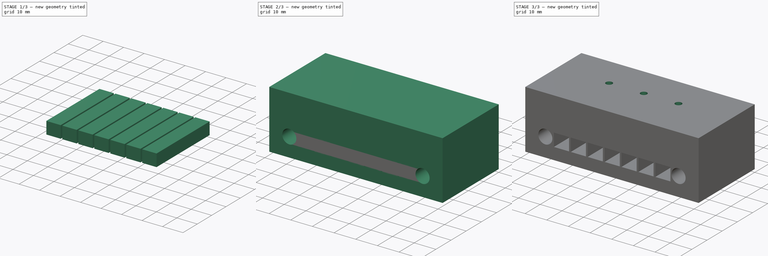
[diagram: build sequence overview — one tinted view per stage of 3, left to right]
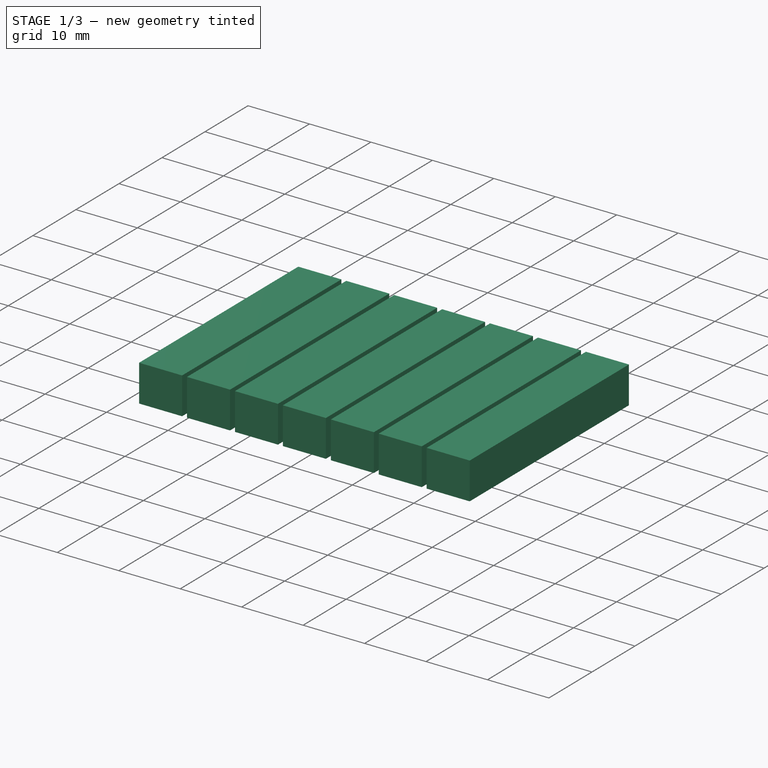
[diagram: stage 1 of 3 — iso view after this stage's code; geometry added in this stage tinted green]
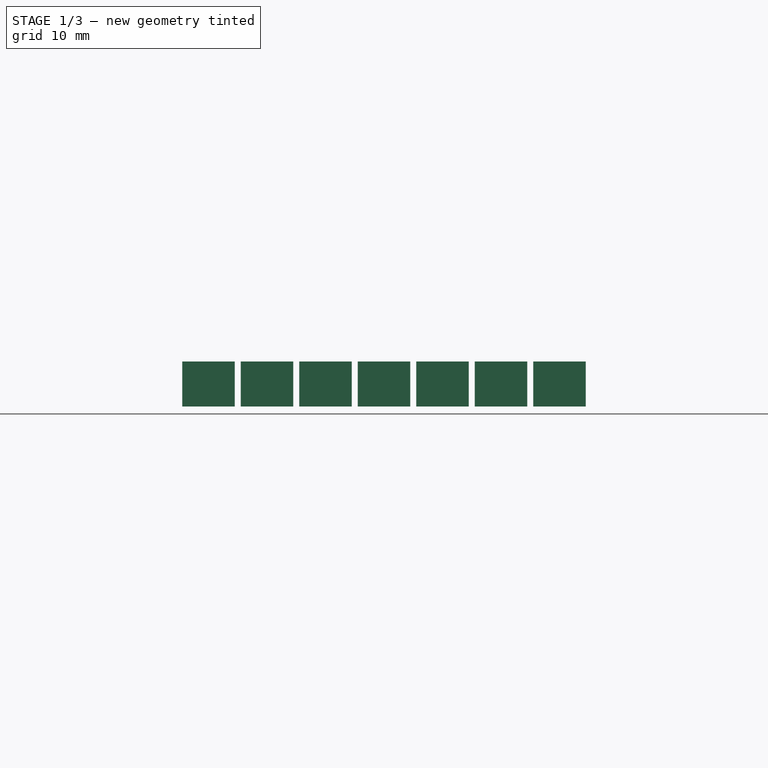
[diagram: stage 1 of 3 — front view after this stage's code; geometry added in this stage tinted green]
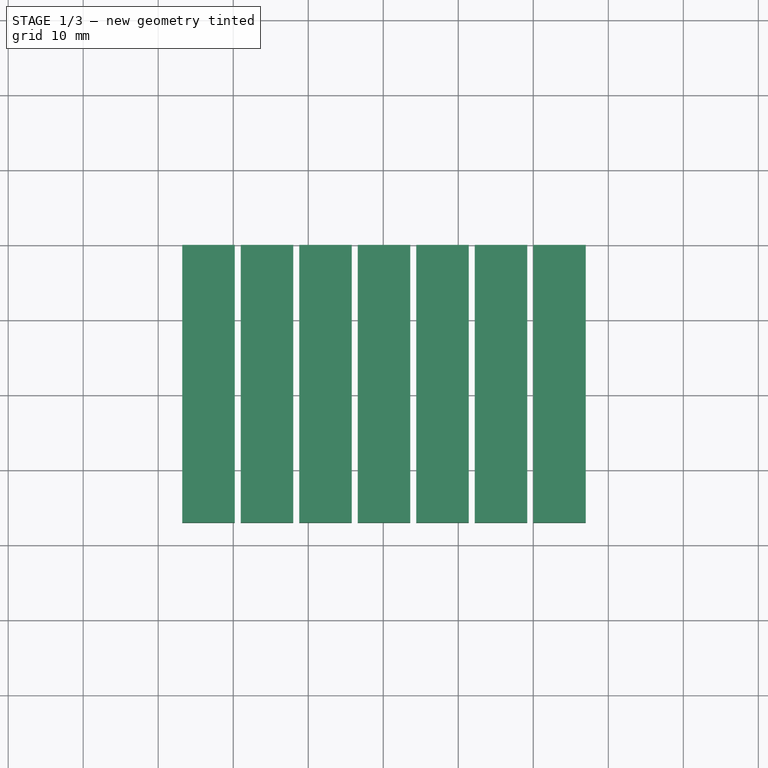
[diagram: stage 1 of 3 — top view after this stage's code; geometry added in this stage tinted green]
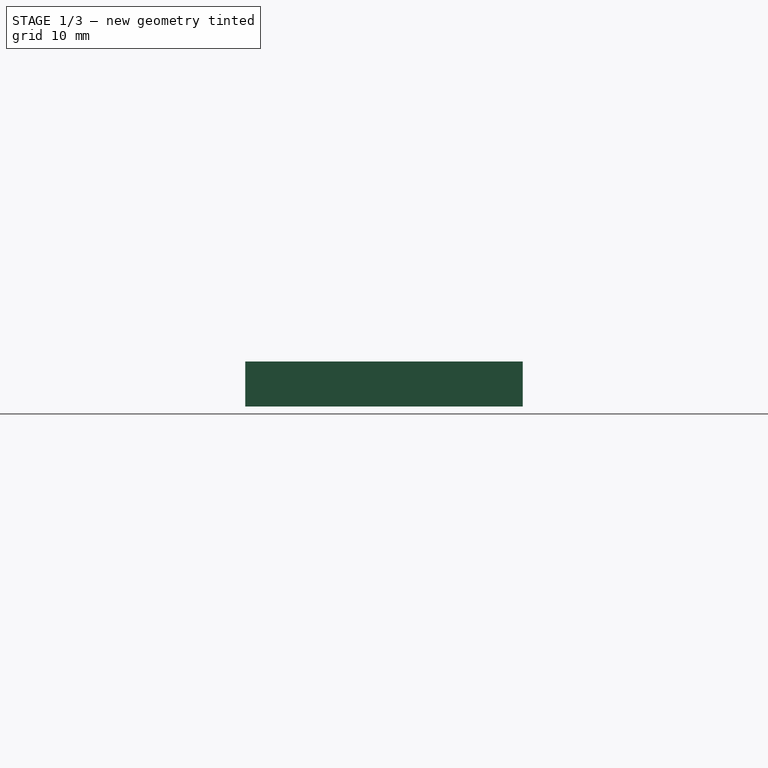
[diagram: stage 1 of 3 — right view after this stage's code; geometry added in this stage tinted green]
FCSTD DOCUMENT  (FreeCAD 0.18R16110 (Git))
Label: UPS_radiator
License: All rights reserved
LicenseURL: http://en.wikipedia.org/wiki/All_rights_reserved
objects: Sketcher::SketchObject×3, PartDesign::Pocket×2, PartDesign::Pad×1, PartDesign::Body×1, Part::Box×1, Part::FeaturePython×1, Part::Cut×1
note: 13 computed .brp shape members not serialized (recipe doc carries the construction recipe); baked Part::Feature solids carry a one-line shape summary decoded from their .brp

FEATURE [PartDesign::Body] Body
  Group = -> [Sketch001,Sketch002,Sketch,Pad,Pocket,Pocket001]
  Origin = -> Origin
  Tip = -> Pocket001
FEATURE [Part::Box] Box  label="Cube"
  AttacherType = Attacher::AttachEngine3D
  Height = 6
  Length = 7
  Placement = pos=(20,-37,5.5) rot=(0,0,1;0rad)
  Width = 37
FEATURE [Part::FeaturePython] Array  # Draft array (typed FeaturePython)
  Angle = 360
  ArrayType = 0
  Axis = (0,0,1)
  Base = -> Box
  Center = (0,0,0)
  Fuse = false
  IntervalAxis = (0,0,0)
  IntervalX = (-7.8,0,0)
  IntervalY = (0,1,0)
  IntervalZ = (0,0,1)
  NumberPolar = 1
  NumberX = 7
  NumberY = 1
  NumberZ = 1
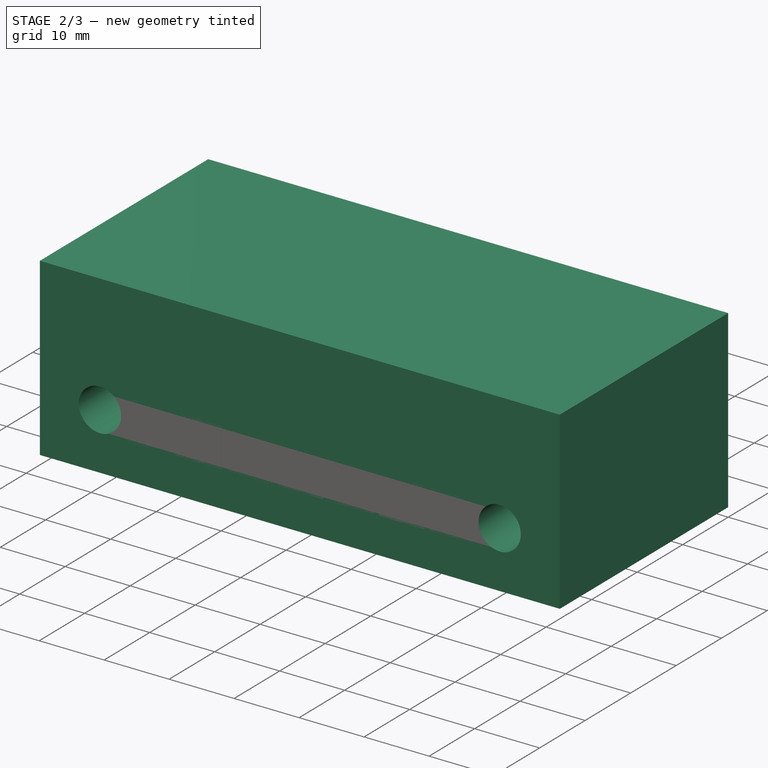
[diagram: stage 2 of 3 — iso view after this stage's code; geometry added in this stage tinted green]
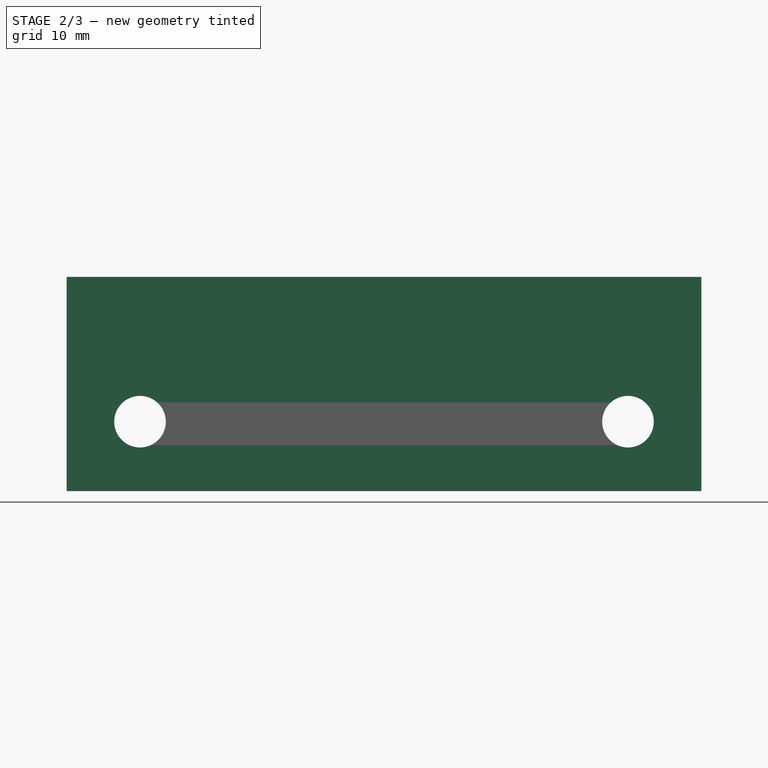
[diagram: stage 2 of 3 — front view after this stage's code; geometry added in this stage tinted green]
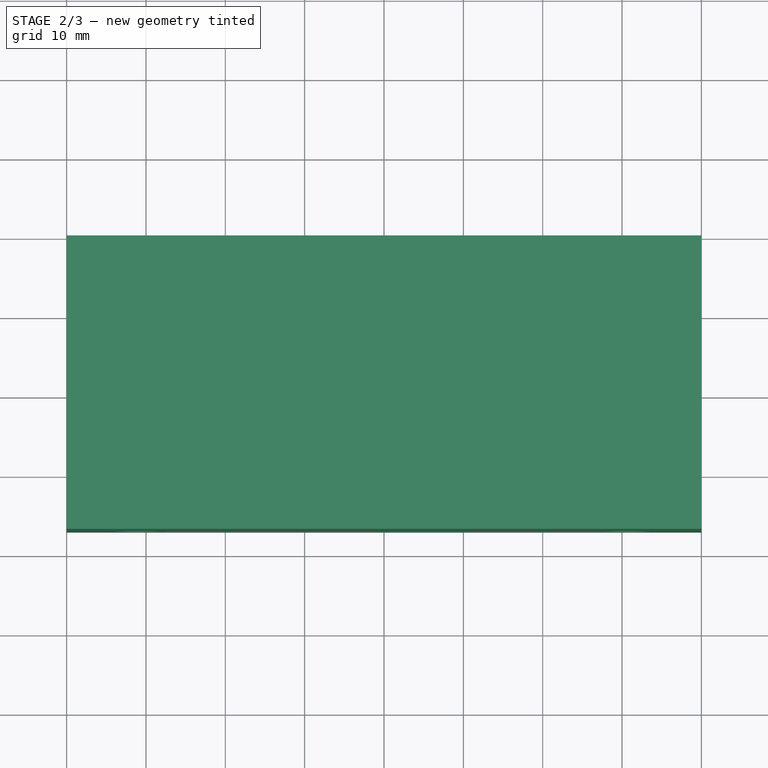
[diagram: stage 2 of 3 — top view after this stage's code; geometry added in this stage tinted green]
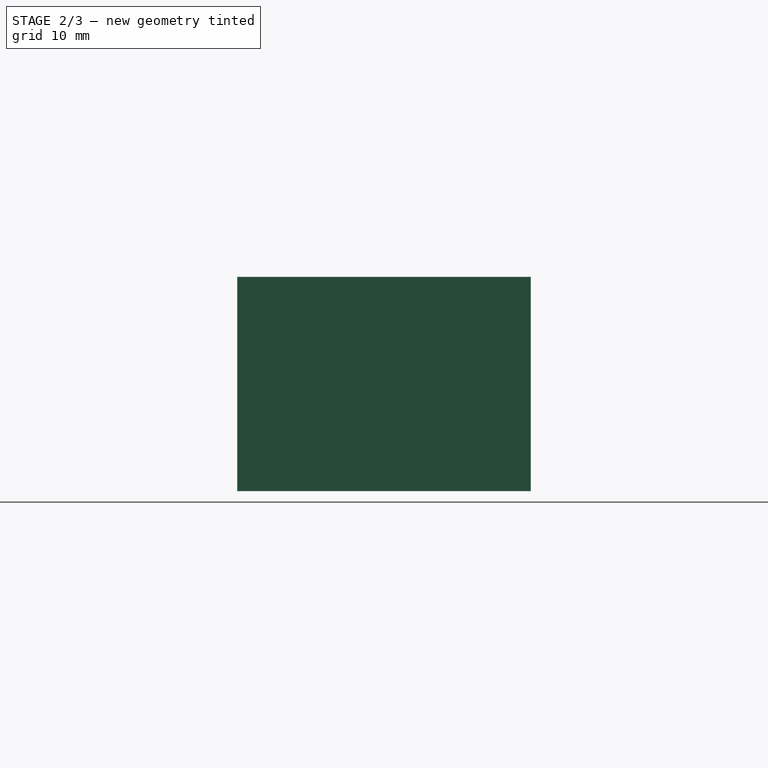
[diagram: stage 2 of 3 — right view after this stage's code; geometry added in this stage tinted green]
FEATURE [Sketcher::SketchObject] Sketch001
  MapMode = 5
  Placement = pos=(0,-37.5,1e-16) rot=(1,0,0;1.5708rad)
  sketch-geometry (5):
    g0: LineSegment [constr] StartX=-40 StartY=5.5 StartZ=0 EndX=40 EndY=5.5 EndZ=0
    g1: LineSegment [constr] StartX=34 StartY=15 StartZ=0 EndX=34 EndY=0 EndZ=0
    g2: LineSegment [constr] StartX=-34 StartY=15 StartZ=0 EndX=-34 EndY=0 EndZ=0
    g3: Circle CenterX=-30.75 CenterY=8.75 CenterZ=0 NormalX=0 NormalY=0 NormalZ=1 AngleXU=0 Radius=3.25
    g4: Circle CenterX=30.75 CenterY=8.75 CenterZ=0 NormalX=0 NormalY=0 NormalZ=1 AngleXU=0 Radius=3.25
  constraints (14):
    c: DistanceY(g-1,g0) = 5.5
    c: Vertical(g1)
    c: Vertical(g2)
    c: PointOnObject(g2,g-1)
    c: Symmetric(g2,g1,g-2)
    c: DistanceX(g2,g1) = 68
    c: Symmetric(g0,g0,g-2)
    c: DistanceX(g0,g0) = 80
    c: Diameter(g3) = 6.5
    c: Diameter(g4) = 6.5
    c: Tangent(g3,g0)
    c: Tangent(g3,g2)
    c: Tangent(g4,g0)
    c: Tangent(g4,g1)
FEATURE [Sketcher::SketchObject] Sketch
  MapMode = 2
  Placement = pos=(0,0,0) rot=(1,0,0;1.5708rad)
  sketch-geometry (4):
    g0: LineSegment StartX=-40 StartY=0 StartZ=0 EndX=40 EndY=0 EndZ=0
    g1: LineSegment StartX=40 StartY=0 StartZ=0 EndX=40 EndY=27 EndZ=0
    g2: LineSegment StartX=40 StartY=27 StartZ=0 EndX=-40 EndY=27 EndZ=0
    g3: LineSegment StartX=-40 StartY=27 StartZ=0 EndX=-40 EndY=0 EndZ=0
  constraints (12):
    c: Coincident(g0,g1)
    c: Coincident(g1,g2)
    c: Coincident(g2,g3)
    c: Coincident(g3,g0)
    c: Horizontal(g0)
    c: Horizontal(g2)
    c: Vertical(g1)
    c: Vertical(g3)
    c: PointOnObject(g0,g-1)
    c: DistanceX(g0,g0) = 80
    c: DistanceY(g1,g1) = 27
    c: DistanceX(g-2,g0) = -40
FEATURE [PartDesign::Pad] Pad
  Length = 37
  Length2 = 100
  Placement = pos=(0,0,0) rot=(1,0,0;1.5708rad)
  Profile = -> Sketch
  Type = 0
FEATURE [PartDesign::Pocket] Pocket
  BaseFeature = -> Pad
  Length = 5
  Length2 = 100
  Placement = pos=(0,0,0) rot=(1,0,0;1.5708rad)
  Profile = -> Sketch001
  Type = 1
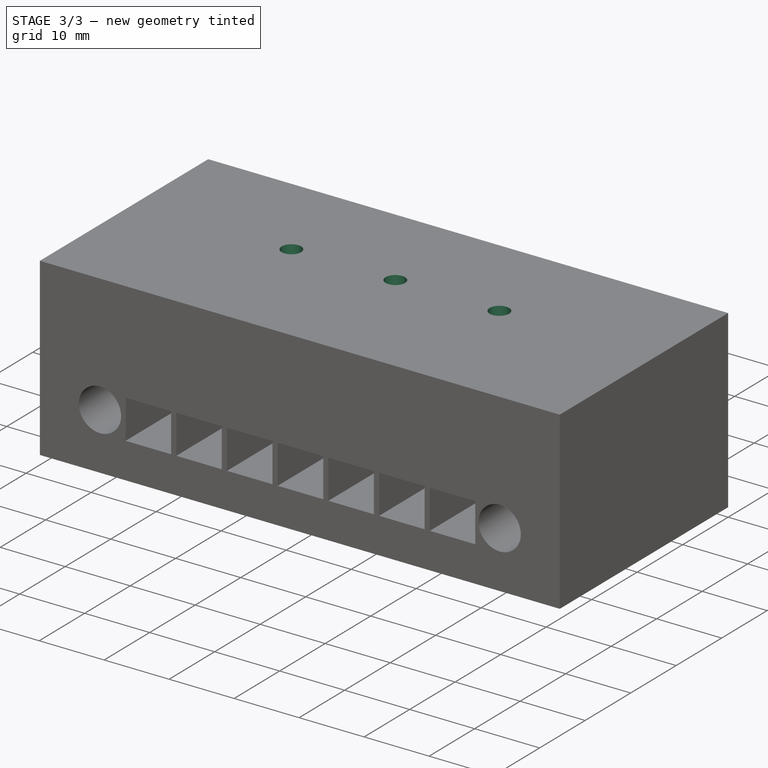
[diagram: stage 3 of 3 — iso view after this stage's code; geometry added in this stage tinted green]
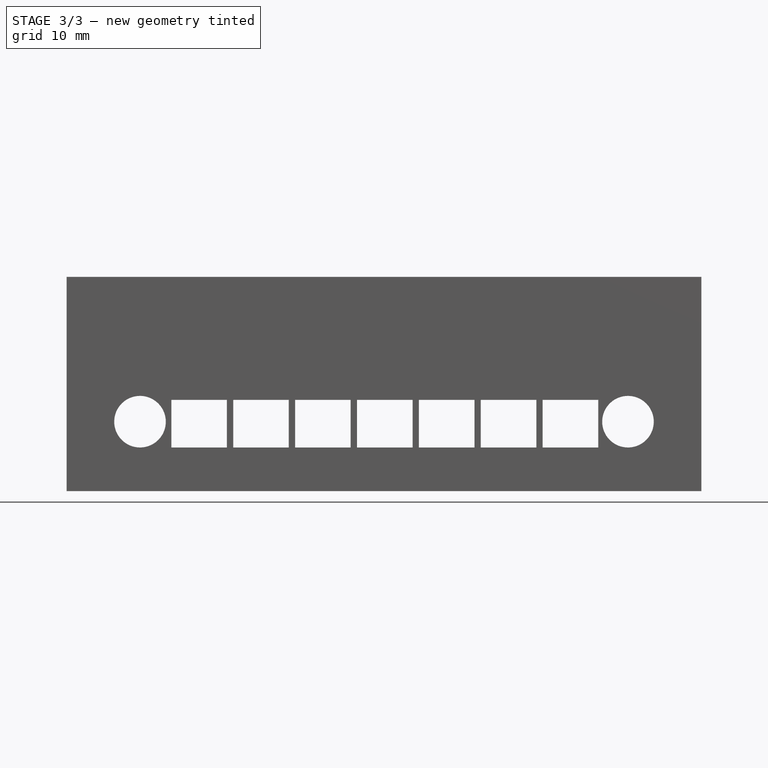
[diagram: stage 3 of 3 — front view after this stage's code; geometry added in this stage tinted green]
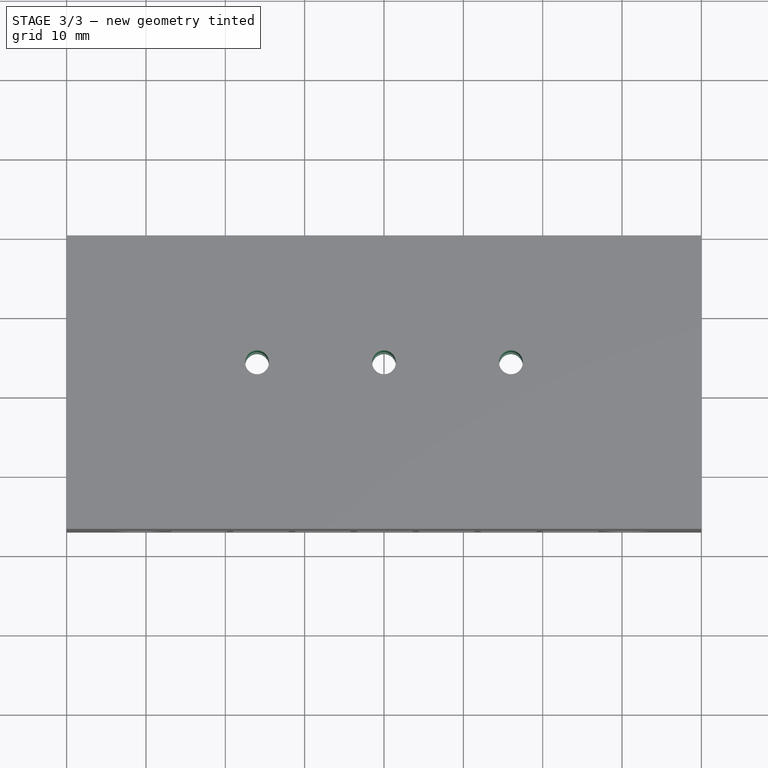
[diagram: stage 3 of 3 — top view after this stage's code; geometry added in this stage tinted green]
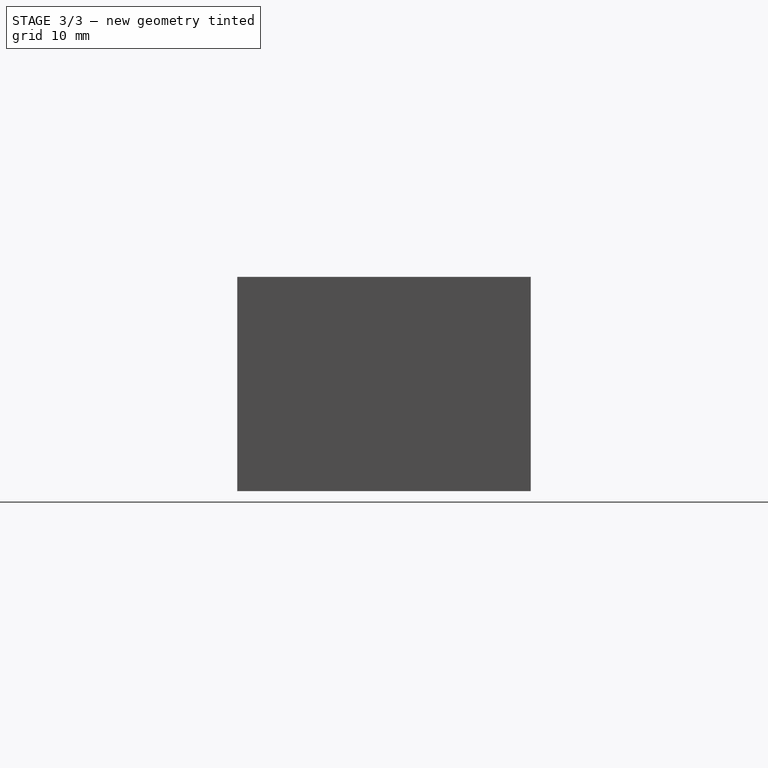
[diagram: stage 3 of 3 — right view after this stage's code; geometry added in this stage tinted green]
FEATURE [Sketcher::SketchObject] Sketch002
  ExternalGeometry = -> [Pocket]
  MapMode = 5
  Placement = pos=(0,3e-15,27) rot=(0,0,1;3.14159rad)
  Support = -> [Pocket]
  sketch-geometry (4):
    g0: LineSegment [constr] StartX=-46.444 StartY=16 StartZ=0 EndX=56.2696 EndY=16 EndZ=0
    g1: Circle CenterX=-16 CenterY=16 CenterZ=0 NormalX=0 NormalY=0 NormalZ=1 AngleXU=0 Radius=1.5
    g2: Circle CenterX=16 CenterY=16 CenterZ=0 NormalX=0 NormalY=0 NormalZ=1 AngleXU=0 Radius=1.5
    g3: Circle CenterX=0 CenterY=16 CenterZ=0 NormalX=0 NormalY=0 NormalZ=1 AngleXU=0 Radius=1.5
  constraints (12):
    c: DistanceY(g-1,g0) = 16
    c: Horizontal(g0)
    c: DistanceX(g0) = -46.444
    c: DistanceX(g0) = 56.2696
    c: Diameter(g2) = 3
    c: Diameter(g1) = 3
    c: PointOnObject(g2,g0)
    c: Symmetric(g1,g2,g-2)
    c: Distance(g1,g-3) = 24
    c: Diameter(g3) = 3
    c: PointOnObject(g3,g0)
    c: PointOnObject(g3,g-2)
FEATURE [PartDesign::Pocket] Pocket001
  BaseFeature = -> Pocket
  Length = 5
  Length2 = 100
  Placement = pos=(0,0,0) rot=(1,0,0;1.5708rad)
  Profile = -> Sketch002
  Type = 1
FEATURE [Part::Cut] Cut
  Base = -> Body
  Tool = -> Array
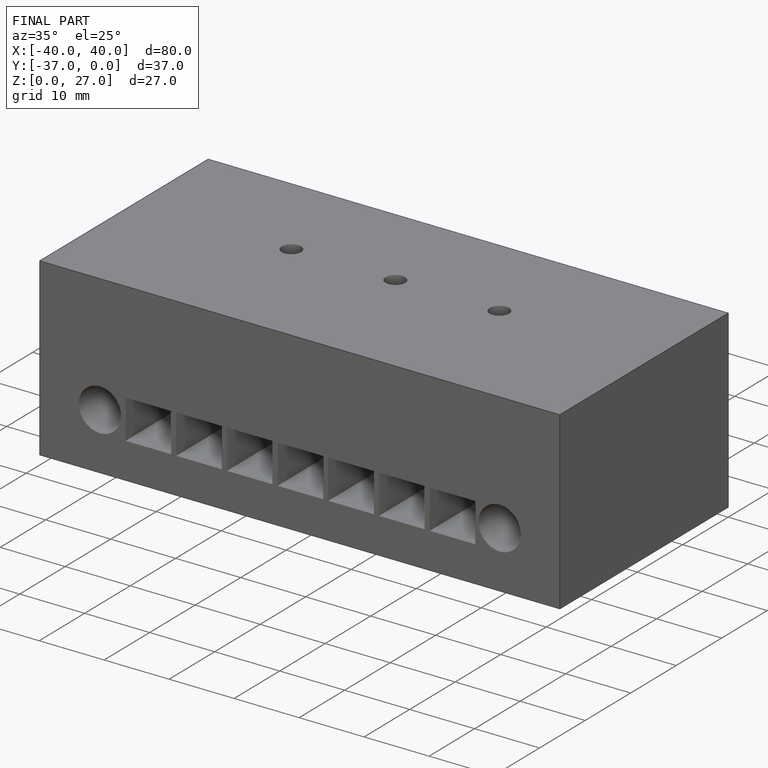
[diagram: finished part — iso view with bounding-box wireframe]
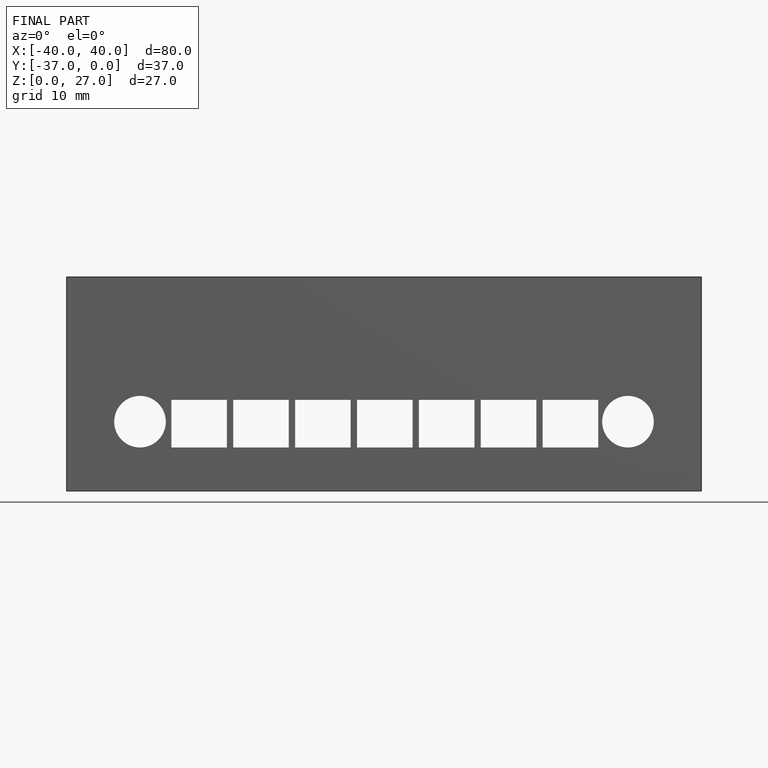
[diagram: finished part — front view with bounding-box wireframe]
